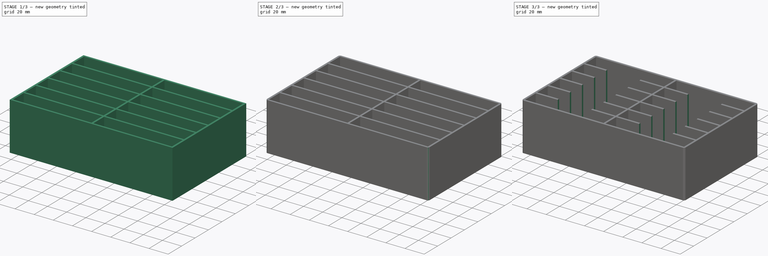
[diagram: build sequence overview — one tinted view per stage of 3, left to right]
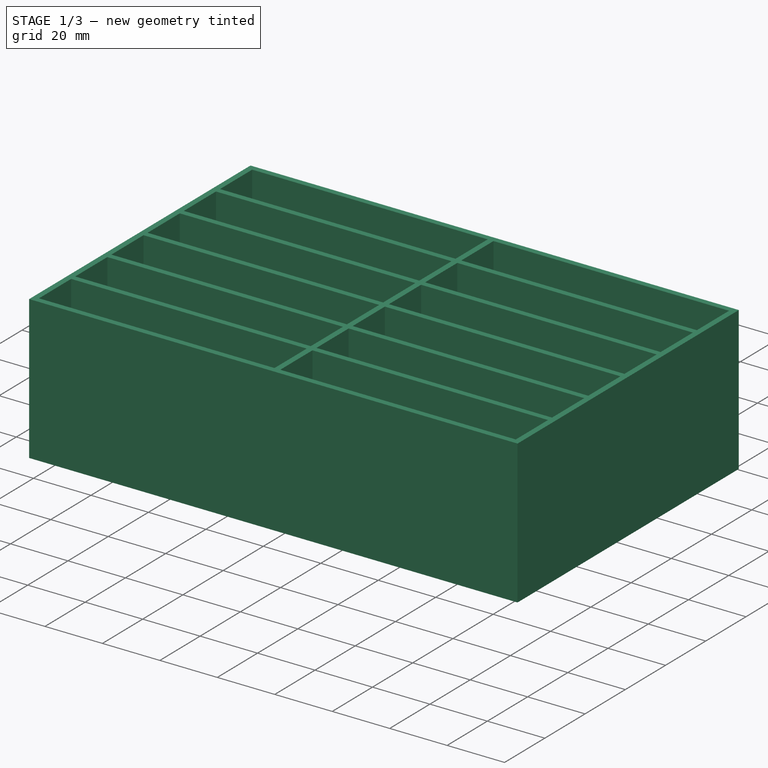
[diagram: stage 1 of 3 — iso view after this stage's code; geometry added in this stage tinted green]
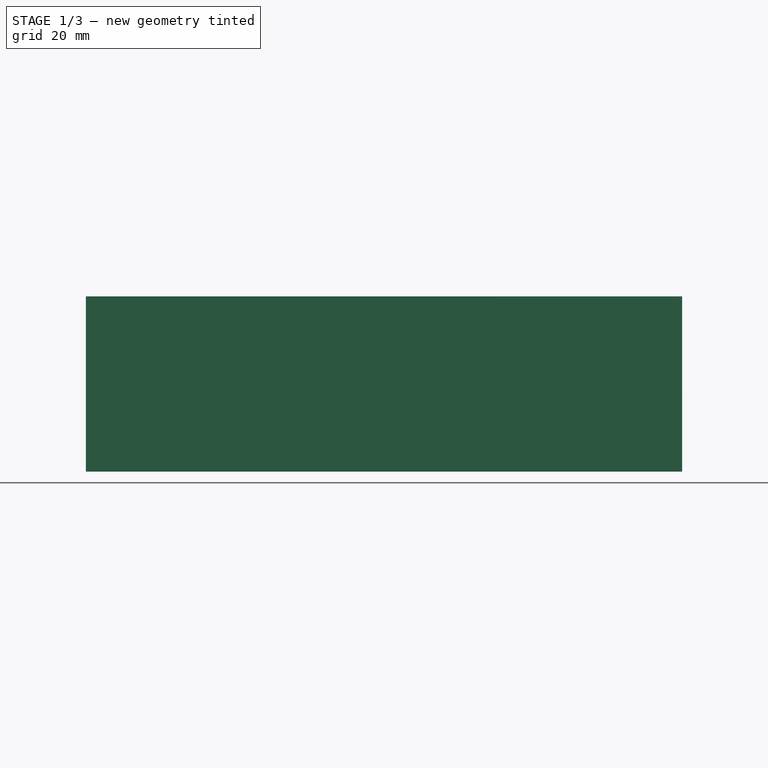
[diagram: stage 1 of 3 — front view after this stage's code; geometry added in this stage tinted green]
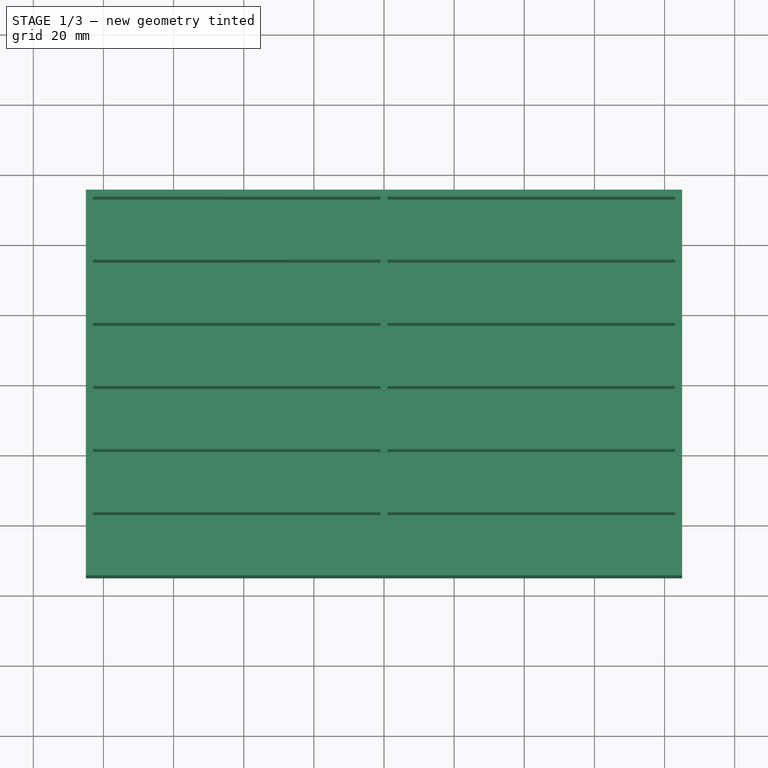
[diagram: stage 1 of 3 — top view after this stage's code; geometry added in this stage tinted green]
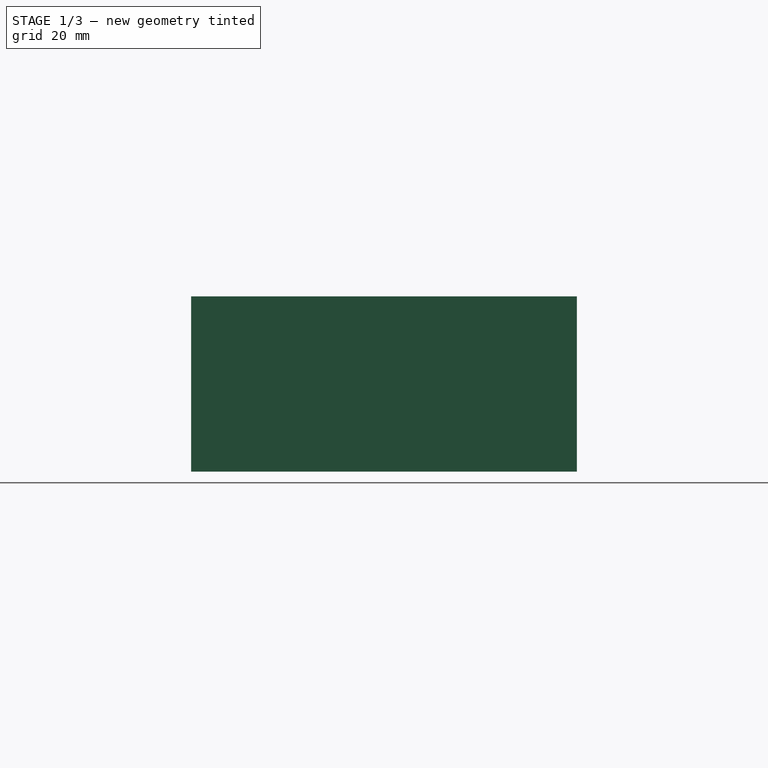
[diagram: stage 1 of 3 — right view after this stage's code; geometry added in this stage tinted green]
FCSTD DOCUMENT  (FreeCAD 0.20R)
Label: pp
License: All rights reserved
LicenseURL: http://en.wikipedia.org/wiki/All_rights_reserved
objects: Sketcher::SketchObject×3, PartDesign::Pocket×2, PartDesign::Fillet×2, PartDesign::Pad×1, PartDesign::Body×1
note: 14 computed .brp shape members not serialized (recipe doc carries the construction recipe); baked Part::Feature solids carry a one-line shape summary decoded from their .brp

FEATURE [Sketcher::SketchObject] Sketch001
  FullyConstrained = true
  MapMode = 5
  Support = -> [XY_Plane]
  sketch-geometry (4):
    g0: LineSegment StartX=85 StartY=55 StartZ=0 EndX=-85 EndY=55 EndZ=0
    g1: LineSegment StartX=-85 StartY=55 StartZ=0 EndX=-85 EndY=-55 EndZ=0
    g2: LineSegment StartX=-85 StartY=-55 StartZ=0 EndX=85 EndY=-55 EndZ=0
    g3: LineSegment StartX=85 StartY=-55 StartZ=0 EndX=85 EndY=55 EndZ=0
  constraints (11):
    c: Coincident(g0,g1)
    c: Coincident(g1,g2)
    c: Coincident(g2,g3)
    c: Coincident(g3,g0)
    c: Horizontal(g0)
    c: Horizontal(g2)
    c: Vertical(g1)
    c: Vertical(g3)
    c: Symmetric(g0,g1,g-1)
    c: DistanceX(g0,g0) = 170
    c: DistanceY(g1,g1) = 110
FEATURE [PartDesign::Pad] Pad
  Direction = (0,0,1)
  Length = 50
  Length2 = 10
  Profile = -> Sketch001
  ReferenceAxis = -> Sketch001 [N_Axis]
  Type = 0
FEATURE [Sketcher::SketchObject] Sketch
  ExternalGeometry = -> [Pad]
  FullyConstrained = true
  MapMode = 5
  Placement = pos=(0,0,50) rot=(0,0,1;0rad)
  Support = -> [Pad]
  sketch-geometry (48):
    g0: LineSegment StartX=-83 StartY=53 StartZ=0 EndX=-1 EndY=53 EndZ=0
    g1: LineSegment StartX=-1 StartY=53 StartZ=0 EndX=-1 EndY=37 EndZ=0
    g2: LineSegment StartX=-1 StartY=37 StartZ=0 EndX=-83 EndY=37 EndZ=0
    g3: LineSegment StartX=-83 StartY=37 StartZ=0 EndX=-83 EndY=53 EndZ=0
    g4: LineSegment StartX=-1 StartY=35 StartZ=0 EndX=-83 EndY=35 EndZ=0
    g5: LineSegment StartX=-83 StartY=35 StartZ=0 EndX=-83 EndY=19 EndZ=0
    g6: LineSegment StartX=-83 StartY=19 StartZ=0 EndX=-1 EndY=19 EndZ=0
    g7: LineSegment StartX=-1 StartY=19 StartZ=0 EndX=-1 EndY=35 EndZ=0
    g8: LineSegment StartX=-83 StartY=17 StartZ=0 EndX=-1 EndY=17 EndZ=0
    g9: LineSegment StartX=-1 StartY=17 StartZ=0 EndX=-1 EndY=1 EndZ=0
    g10: LineSegment StartX=-1 StartY=1 StartZ=0 EndX=-83 EndY=1 EndZ=0
    g11: LineSegment StartX=-83 StartY=1 StartZ=0 EndX=-83 EndY=17 EndZ=0
    g12: LineSegment StartX=1 StartY=53 StartZ=0 EndX=83 EndY=53 EndZ=0
    g13: LineSegment StartX=83 StartY=53 StartZ=0 EndX=83 EndY=37 EndZ=0
    g14: LineSegment StartX=83 StartY=37 StartZ=0 EndX=1 EndY=37 EndZ=0
    g15: LineSegment StartX=1 StartY=37 StartZ=0 EndX=1 EndY=53 EndZ=0
    g16: LineSegment StartX=1 StartY=35 StartZ=0 EndX=83 EndY=35 EndZ=0
    g17: LineSegment StartX=83 StartY=35 StartZ=0 EndX=83 EndY=19 EndZ=0
    g18: LineSegment StartX=83 StartY=19 StartZ=0 EndX=1 EndY=19 EndZ=0
    g19: LineSegment StartX=1 StartY=19 StartZ=0 EndX=1 EndY=35 EndZ=0
    g20: LineSegment StartX=1 StartY=17 StartZ=0 EndX=83 EndY=17 EndZ=0
    g21: LineSegment StartX=83 StartY=17 StartZ=0 EndX=83 EndY=1 EndZ=0
    g22: LineSegment StartX=83 StartY=1 StartZ=0 EndX=1 EndY=1 EndZ=0
    g23: LineSegment StartX=1 StartY=1 StartZ=0 EndX=1 EndY=17 EndZ=0
    g24: LineSegment StartX=-1 StartY=-1 StartZ=0 EndX=-83 EndY=-1 EndZ=0
    g25: LineSegment StartX=-83 StartY=-1 StartZ=0 EndX=-83 EndY=-17 EndZ=0
    g26: LineSegment StartX=-83 StartY=-17 StartZ=0 EndX=-1 EndY=-17 EndZ=0
    g27: LineSegment StartX=-1 StartY=-17 StartZ=0 EndX=-1 EndY=-1 EndZ=0
    g28: LineSegment StartX=-1 StartY=-19 StartZ=0 EndX=-83 EndY=-19 EndZ=0
    g29: LineSegment StartX=-83 StartY=-19 StartZ=0 EndX=-83 EndY=-35 EndZ=0
    g30: LineSegment StartX=-83 StartY=-35 StartZ=0 EndX=-1 EndY=-35 EndZ=0
    g31: LineSegment StartX=-1 StartY=-35 StartZ=0 EndX=-1 EndY=-19 EndZ=0
    g32: LineSegment StartX=-1 StartY=-37 StartZ=0 EndX=-83 EndY=-37 EndZ=0
    g33: LineSegment StartX=-83 StartY=-37 StartZ=0 EndX=-83 EndY=-53 EndZ=0
    g34: LineSegment StartX=-83 StartY=-53 StartZ=0 EndX=-1 EndY=-53 EndZ=0
    g35: LineSegment StartX=-1 StartY=-53 StartZ=0 EndX=-1 EndY=-37 EndZ=0
    g36: LineSegment StartX=1 StartY=-1 StartZ=0 EndX=83 EndY=-1 EndZ=0
    g37: LineSegment StartX=83 StartY=-1 StartZ=0 EndX=83 EndY=-17 EndZ=0
    g38: LineSegment StartX=83 StartY=-17 StartZ=0 EndX=1 EndY=-17 EndZ=0
    g39: LineSegment StartX=1 StartY=-17 StartZ=0 EndX=1 EndY=-1 EndZ=0
    g40: LineSegment StartX=1 StartY=-19 StartZ=0 EndX=83 EndY=-19 EndZ=0
    g41: LineSegment StartX=83 StartY=-19 StartZ=0 EndX=83 EndY=-35 EndZ=0
    g42: LineSegment StartX=83 StartY=-35 StartZ=0 EndX=1 EndY=-35 EndZ=0
    g43: LineSegment StartX=1 StartY=-35 StartZ=0 EndX=1 EndY=-19 EndZ=0
    g44: LineSegment StartX=1 StartY=-37 StartZ=0 EndX=83 EndY=-37 EndZ=0
    g45: LineSegment StartX=83 StartY=-37 StartZ=0 EndX=83 EndY=-53 EndZ=0
    g46: LineSegment StartX=83 StartY=-53 StartZ=0 EndX=1 EndY=-53 EndZ=0
    g47: LineSegment StartX=1 StartY=-53 StartZ=0 EndX=1 EndY=-37 EndZ=0
  constraints (138):
    c: Coincident(g0,g1)
    c: Coincident(g1,g2)
    c: Coincident(g2,g3)
    c: Coincident(g3,g0)
    c: Horizontal(g0)
    c: Horizontal(g2)
    c: Vertical(g1)
    c: Vertical(g3)
    c: Coincident(g4,g5)
    c: Coincident(g5,g6)
    c: Coincident(g6,g7)
    c: Coincident(g7,g4)
    c: Horizontal(g4)
    c: Horizontal(g6)
    c: Vertical(g5)
    c: Vertical(g7)
    c: Coincident(g8,g9)
    c: Coincident(g9,g10)
    c: Coincident(g10,g11)
    c: Coincident(g11,g8)
    c: Horizontal(g8)
    c: Horizontal(g10)
    c: Vertical(g9)
    c: Vertical(g11)
    c: Coincident(g12,g13)
    c: Coincident(g13,g14)
    c: Coincident(g14,g15)
    c: Coincident(g15,g12)
    c: Horizontal(g12)
    c: Horizontal(g14)
    c: Vertical(g13)
    c: Vertical(g15)
    c: Coincident(g16,g17)
    c: Coincident(g17,g18)
    c: Coincident(g18,g19)
    c: Coincident(g19,g16)
    c: Horizontal(g16)
    c: Horizontal(g18)
    c: Vertical(g17)
    c: Vertical(g19)
    c: Coincident(g20,g21)
    c: Coincident(g21,g22)
    c: Coincident(g22,g23)
    c: Coincident(g23,g20)
    c: Horizontal(g20)
    c: Horizontal(g22)
    c: Vertical(g21)
    c: Vertical(g23)
    c: Equal(g0,g16)
    c: Equal(g16,g20)
    c: Equal(g20,g12)
    c: Equal(g12,g4)
    c: Equal(g4,g8)
    c: Equal(g1,g15)
    c: Equal(g15,g19)
    c: Equal(g19,g7)
    c: Equal(g7,g9)
    c: Equal(g9,g23)
    c: Symmetric(g12,g0,g-2)
    c: Symmetric(g16,g4,g-2)
    c: Symmetric(g20,g8,g-2)
    c: Vertical(g20,g16)
    c: Vertical(g16,g12)
    c: DistanceY(g20,g18) = 2
    c: DistanceY(g16,g14) = 2
    c: DistanceY(g0,g-3) = 2
    c: DistanceX(g-3,g0) = 2
    c: DistanceX(g0,g12) = 2
    c: DistanceY(g-1,g9) = 1
    c: Coincident(g24,g25)
    c: Coincident(g25,g26)
    c: Coincident(g26,g27)
    c: Coincident(g27,g24)
    c: Horizontal(g24)
    c: Horizontal(g26)
    c: Vertical(g25)
    c: Vertical(g27)
    c: Coincident(g28,g29)
    c: Coincident(g29,g30)
    c: Coincident(g30,g31)
    c: Coincident(g31,g28)
    c: Horizontal(g28)
    c: Horizontal(g30)
    c: Vertical(g29)
    c: Vertical(g31)
    c: Coincident(g32,g33)
    c: Coincident(g33,g34)
    c: Coincident(g34,g35)
    c: Coincident(g35,g32)
    c: Horizontal(g32)
    c: Horizontal(g34)
    c: Vertical(g33)
    c: Vertical(g35)
    c: Coincident(g36,g37)
    c: Coincident(g37,g38)
    c: Coincident(g38,g39)
    c: Coincident(g39,g36)
    c: Horizontal(g36)
    c: Horizontal(g38)
    c: Vertical(g37)
    c: Vertical(g39)
    c: Coincident(g40,g41)
    c: Coincident(g41,g42)
    c: Coincident(g42,g43)
    c: Coincident(g43,g40)
    c: Horizontal(g40)
    c: Horizontal(g42)
    c: Vertical(g41)
    c: Vertical(g43)
    c: Coincident(g44,g45)
    c: Coincident(g45,g46)
    c: Coincident(g46,g47)
    c: Coincident(g47,g44)
    c: Horizontal(g44)
    c: Horizontal(g46)
    c: Vertical(g45)
    c: Vertical(g47)
    c: Equal(g36,g40)
    c: Equal(g40,g44)
    c: Equal(g44,g32)
    c: Equal(g32,g28)
    c: Equal(g28,g24)
    c: Equal(g27,g39)
    c: Equal(g39,g31)
    c: Equal(g31,g43)
    c: Equal(g43,g35)
    c: Equal(g35,g47)
    c: Equal(g36,g22)
    c: Equal(g39,g23)
    c: Symmetric(g24,g36,g-2)
    c: Vertical(g36,g22)
    c: Vertical(g22,g40)
    c: Vertical(g40,g44)
    c: Symmetric(g28,g40,g-2)
    c: Symmetric(g32,g44,g-2)
    c: DistanceY(g36,g-1) = 1
    c: DistanceY(g28,g26) = 2
    c: DistanceY(g32,g30) = 2
FEATURE [PartDesign::Pocket] Pocket
  BaseFeature = -> Pad
  Direction = (0,0,-1)
  Length = 0
  Length2 = 5
  Offset = -2
  Profile = -> Sketch
  ReferenceAxis = -> Sketch [N_Axis]
  Type = 3
  UpToFace = -> Pad [Face5]
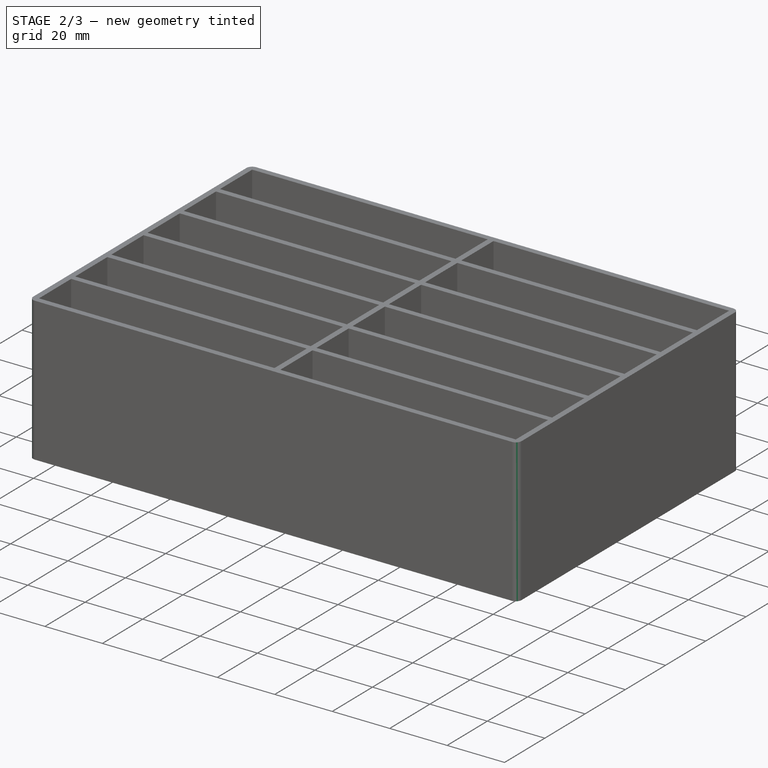
[diagram: stage 2 of 3 — iso view after this stage's code; geometry added in this stage tinted green]
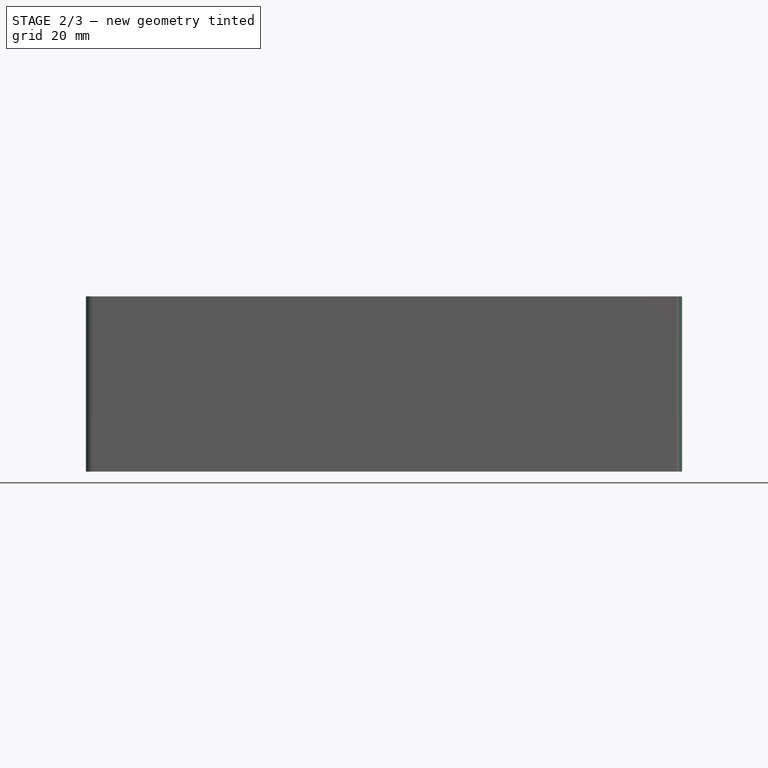
[diagram: stage 2 of 3 — front view after this stage's code; geometry added in this stage tinted green]
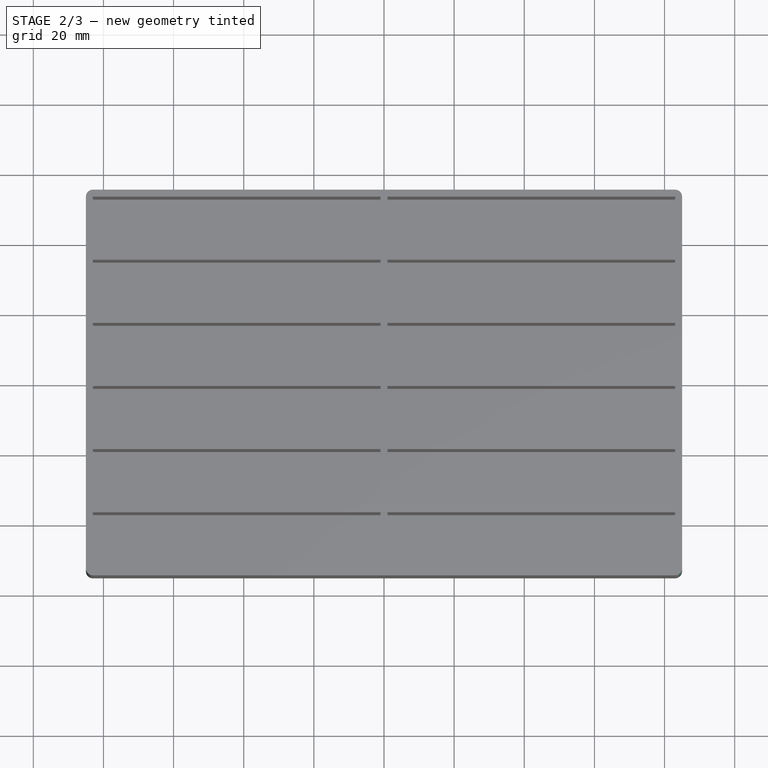
[diagram: stage 2 of 3 — top view after this stage's code; geometry added in this stage tinted green]
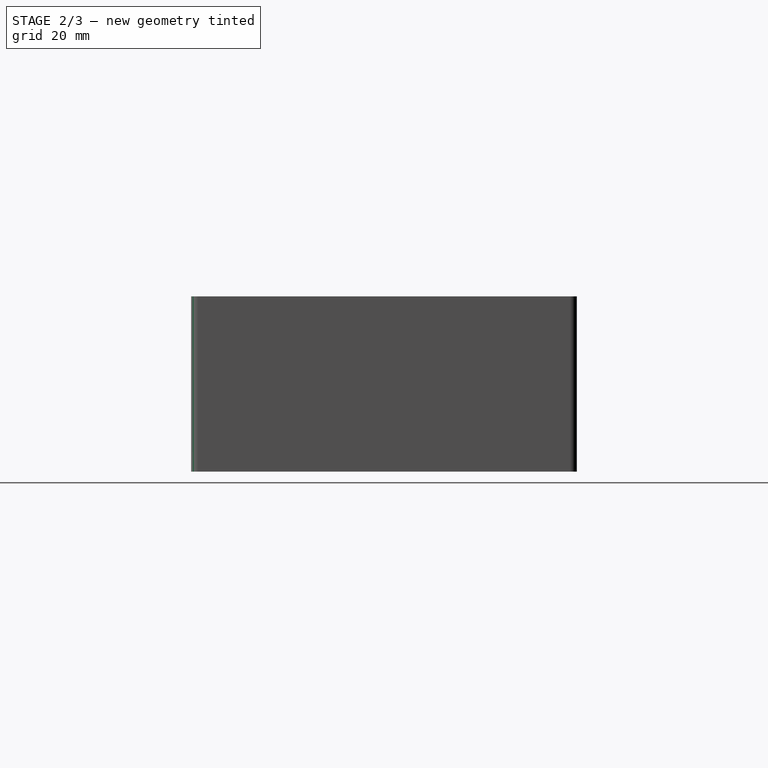
[diagram: stage 2 of 3 — right view after this stage's code; geometry added in this stage tinted green]
FEATURE [PartDesign::Fillet] Fillet
  Base = -> Pocket [Edge1,Edge5,Edge8,Edge2]
  BaseFeature = -> Pocket
  Radius = 2
  SupportTransform = false
  UseAllEdges = false
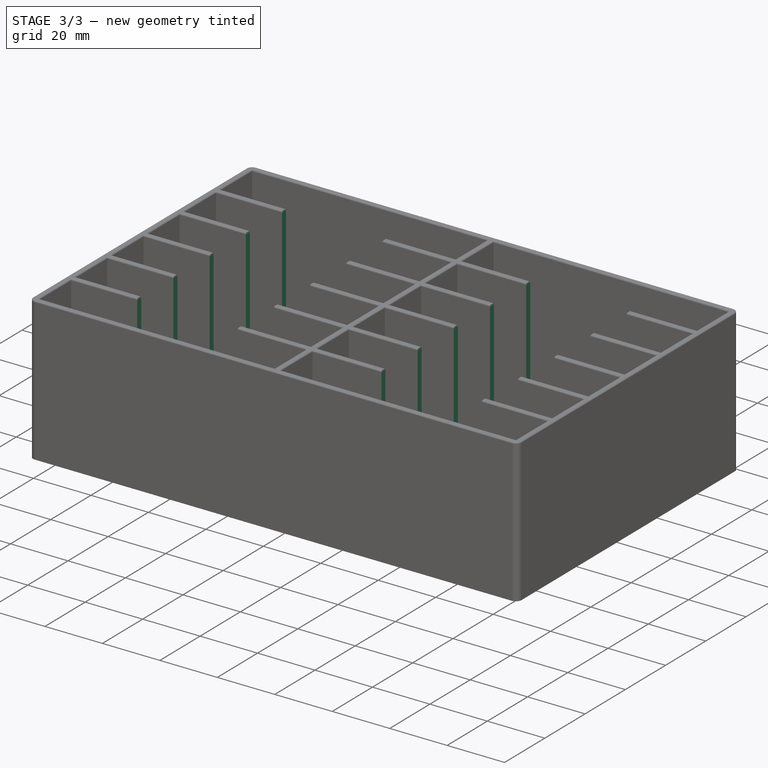
[diagram: stage 3 of 3 — iso view after this stage's code; geometry added in this stage tinted green]
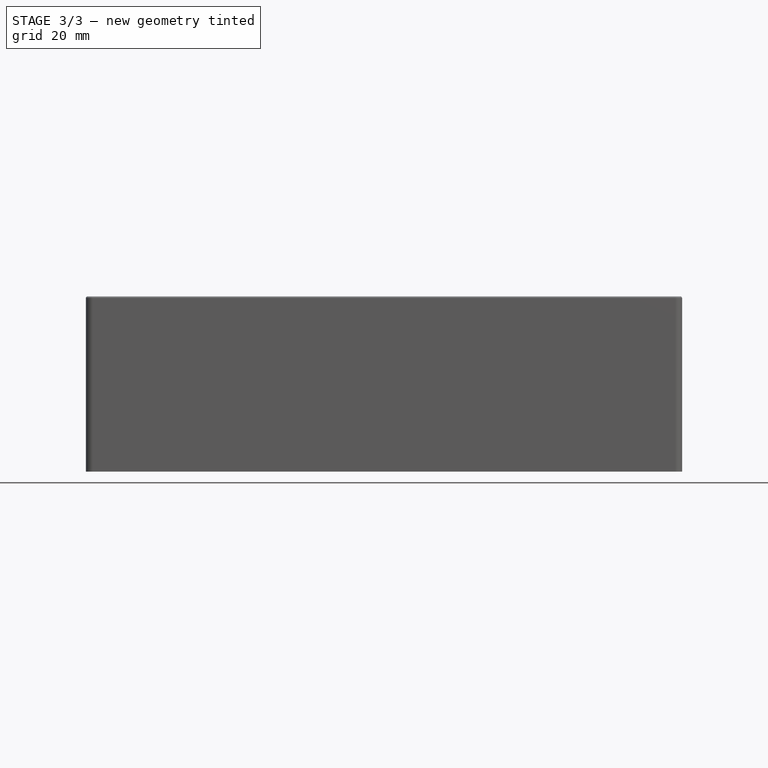
[diagram: stage 3 of 3 — front view after this stage's code; geometry added in this stage tinted green]
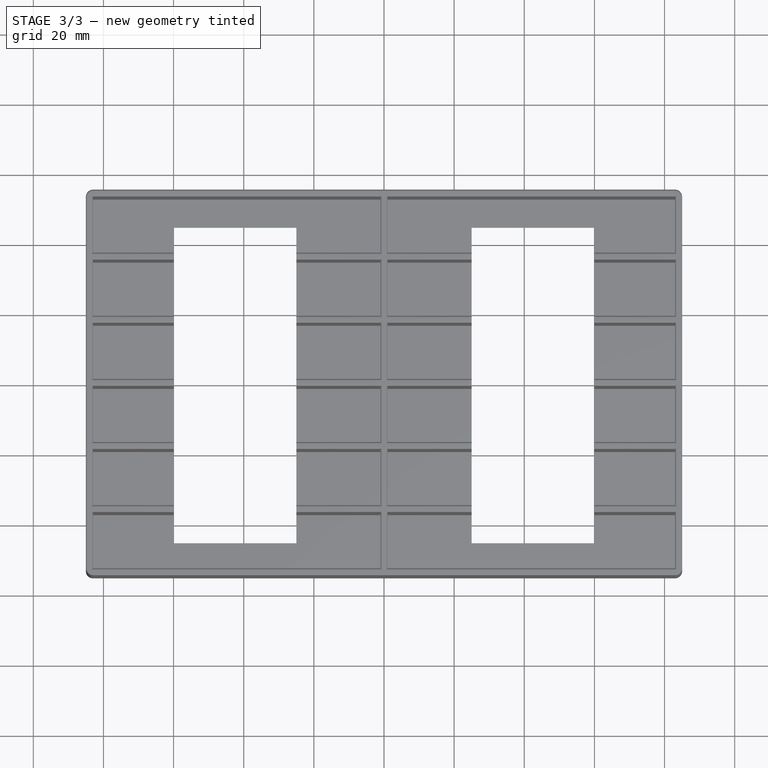
[diagram: stage 3 of 3 — top view after this stage's code; geometry added in this stage tinted green]
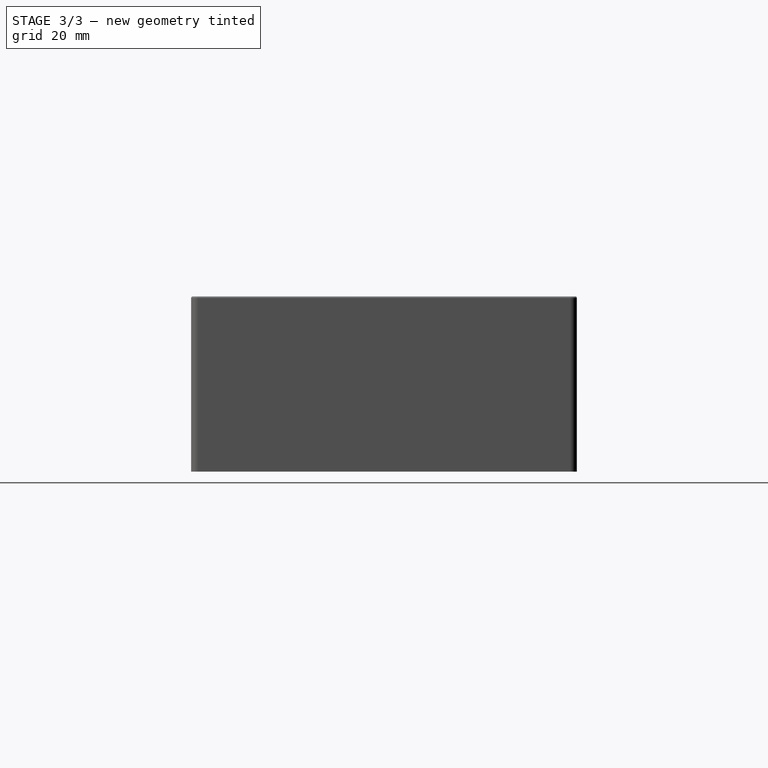
[diagram: stage 3 of 3 — right view after this stage's code; geometry added in this stage tinted green]
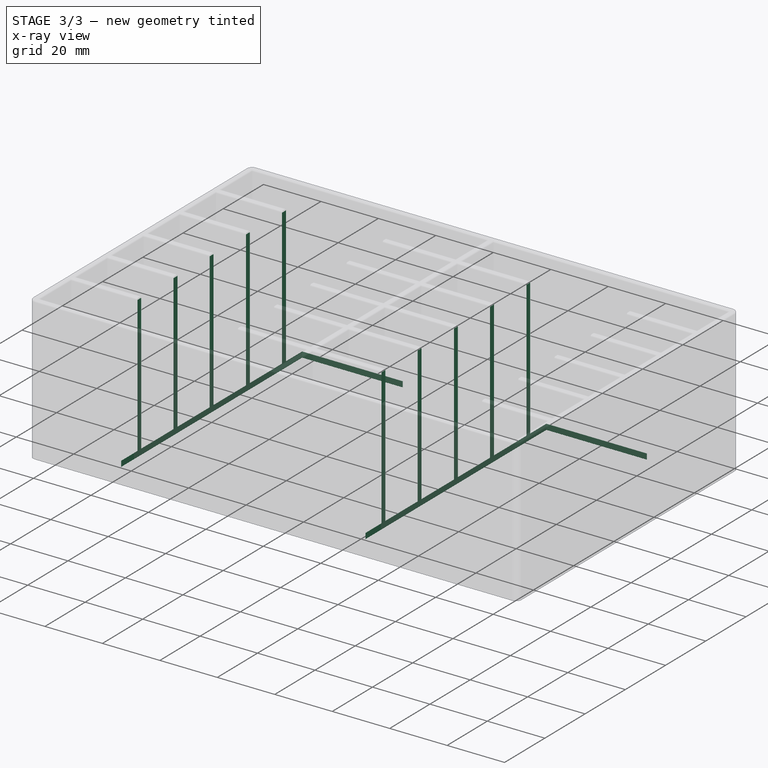
[diagram: stage 3 of 3 — x-ray composite at the iso view; earlier geometry ghosted, this stage's added geometry solid]
FEATURE [PartDesign::Fillet] Fillet001
  Base = -> Fillet [Face5]
  BaseFeature = -> Fillet
  Radius = 0.5
  SupportTransform = false
  UseAllEdges = false
FEATURE [Sketcher::SketchObject] Sketch002
  ExternalGeometry = -> [Pad]
  FullyConstrained = true
  MapMode = 5
  Placement = pos=(0,0,0) rot=(1,0,0;3.14159rad)
  Support = -> [Fillet001]
  sketch-geometry (8):
    g0: LineSegment StartX=-60 StartY=45 StartZ=0 EndX=-25 EndY=45 EndZ=0
    g1: LineSegment StartX=-25 StartY=45 StartZ=0 EndX=-25 EndY=-45 EndZ=0
    g2: LineSegment StartX=-25 StartY=-45 StartZ=0 EndX=-60 EndY=-45 EndZ=0
    g3: LineSegment StartX=-60 StartY=-45 StartZ=0 EndX=-60 EndY=45 EndZ=0
    g4: LineSegment StartX=25 StartY=45 StartZ=0 EndX=60 EndY=45 EndZ=0
    g5: LineSegment StartX=60 StartY=45 StartZ=0 EndX=60 EndY=-45 EndZ=0
    g6: LineSegment StartX=60 StartY=-45 StartZ=0 EndX=25 EndY=-45 EndZ=0
    g7: LineSegment StartX=25 StartY=-45 StartZ=0 EndX=25 EndY=45 EndZ=0
  constraints (23):
    c: Coincident(g0,g1)
    c: Coincident(g1,g2)
    c: Coincident(g2,g3)
    c: Coincident(g3,g0)
    c: Horizontal(g0)
    c: Horizontal(g2)
    c: Vertical(g1)
    c: Vertical(g3)
    c: DistanceX(g-3,g0) = 25
    c: DistanceX(g0,g-1) = 25
    c: DistanceY(g0,g-3) = 10
    c: DistanceY(g-4,g2) = 10
    c: Coincident(g4,g5)
    c: Coincident(g5,g6)
    c: Coincident(g6,g7)
    c: Coincident(g7,g4)
    c: Horizontal(g4)
    c: Horizontal(g6)
    c: Vertical(g5)
    c: Vertical(g7)
    c: Symmetric(g4,g0,g-2)
    c: Equal(g7,g1)
    c: Equal(g4,g0)
FEATURE [PartDesign::Pocket] Pocket001
  BaseFeature = -> Fillet001
  Direction = (0,0,1)
  Length = 5
  Length2 = 5
  Profile = -> Sketch002
  ReferenceAxis = -> Sketch002 [N_Axis]
  Type = 1
FEATURE [PartDesign::Body] Body
  Group = -> [Sketch001,Pad,Sketch,Pocket,Fillet,Fillet001,Sketch002,Pocket001]
  Origin = -> Origin
  Tip = -> Pocket001
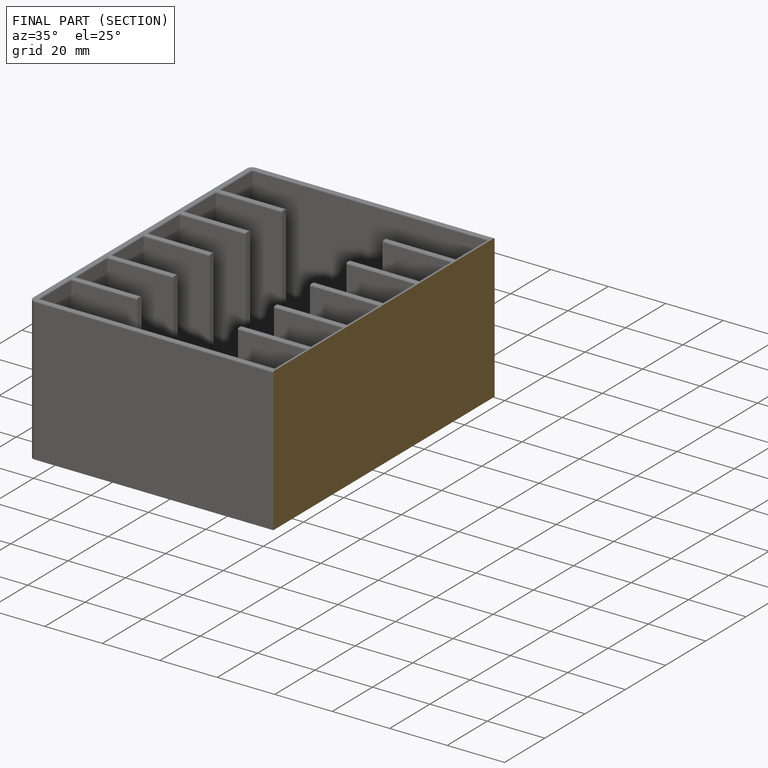
[diagram: finished part — half-section view (interior)]
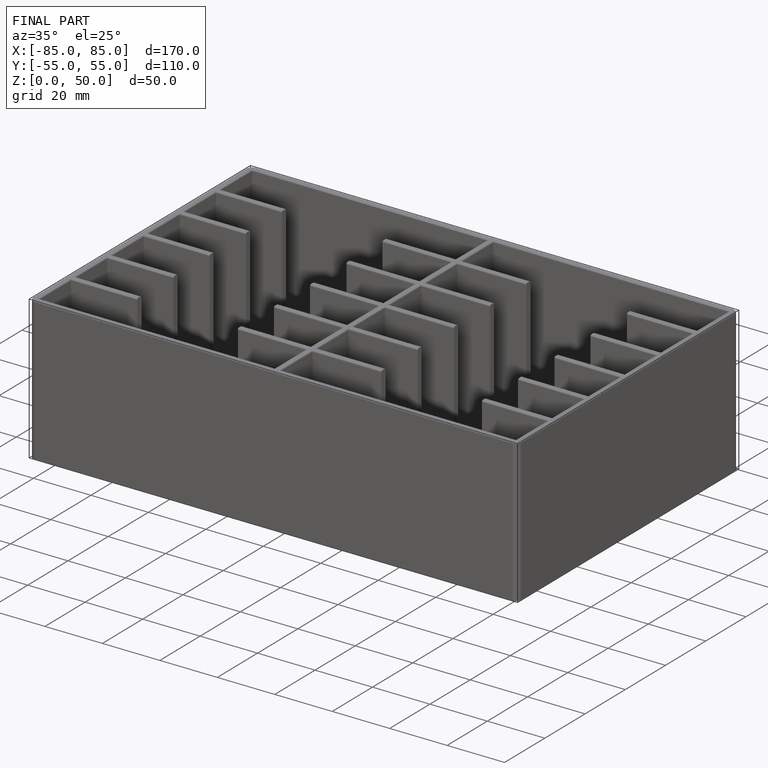
[diagram: finished part — iso view with bounding-box wireframe]
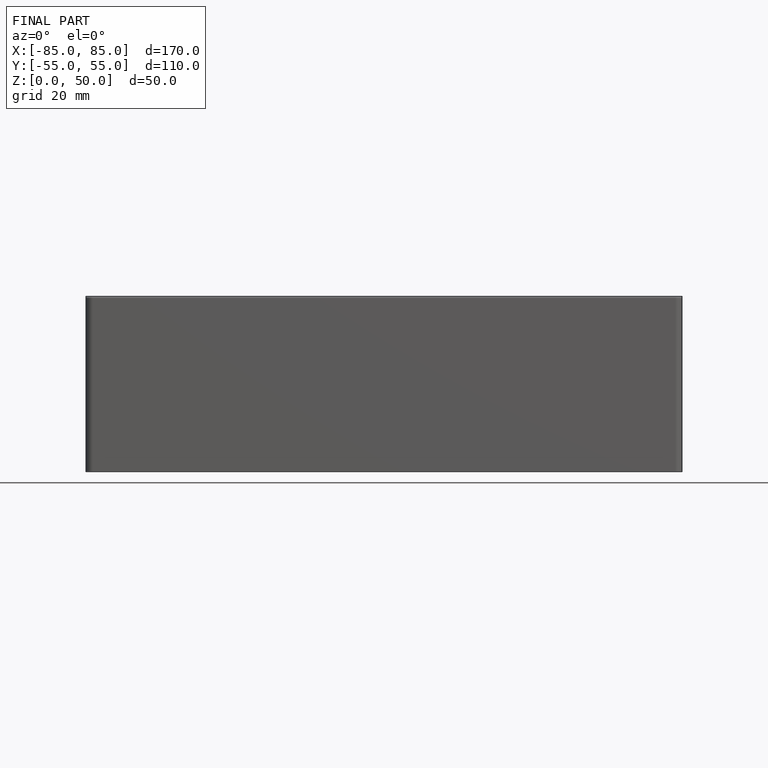
[diagram: finished part — front view with bounding-box wireframe]
